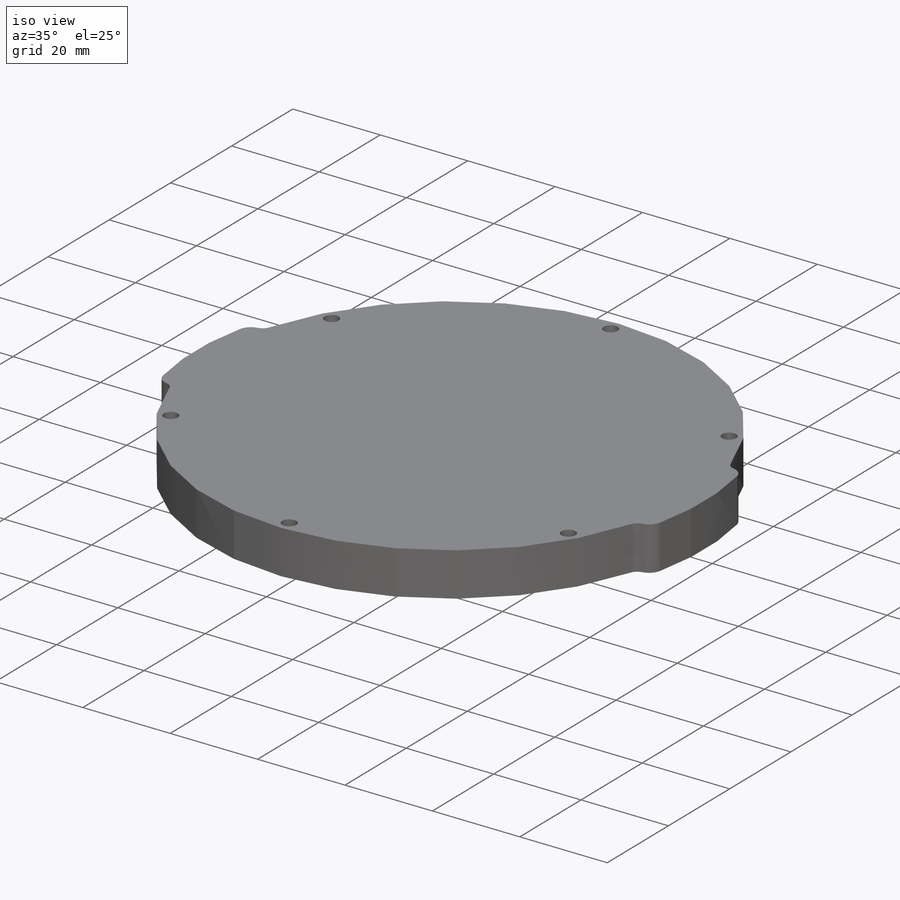
[diagram: iso view]
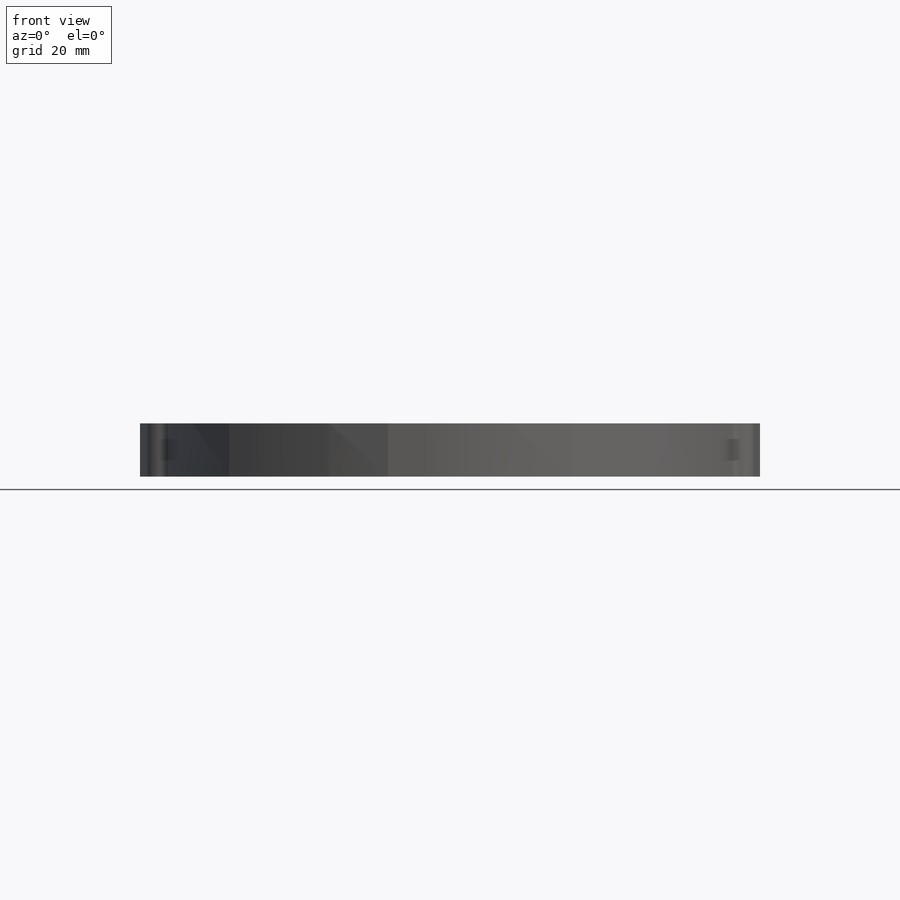
[diagram: front view]
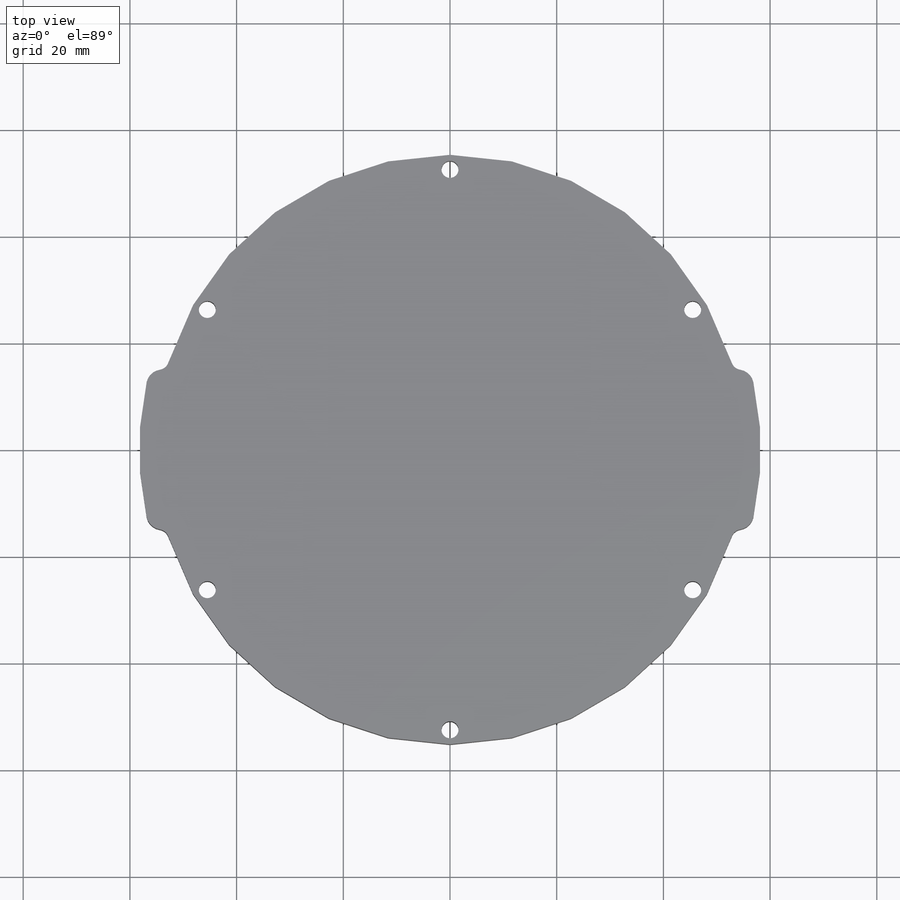
[diagram: top view]
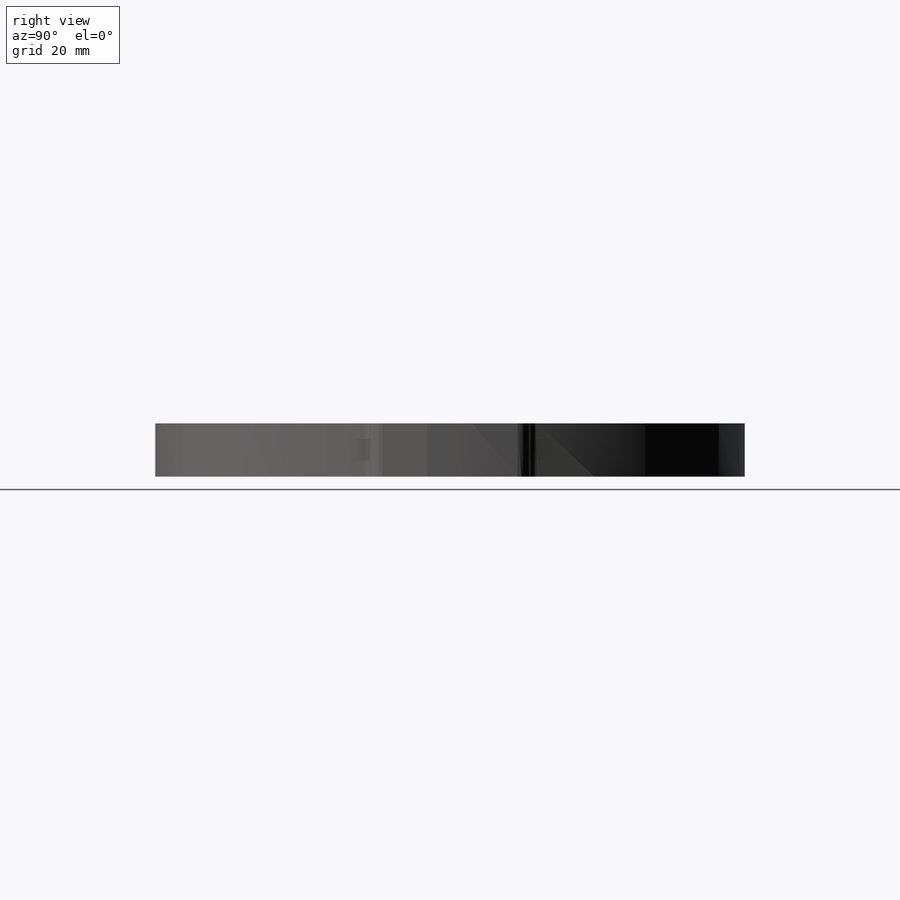
[diagram: right view]
SOLIDWORKS PART (.sldprt)
format: sldprt  version: not decoded by parser v0  size: 395,776 bytes
history: native  units: mm
features: plane x3, sketch x2, fillet x2, material x1, extrude x1, cut_extrude x1 (+10 scaffold rows collapsed)
feature tree (20):
  scaffold x10  (default folders/planes/origin — collapsed)
  material  "材质 <未指定>"
  plane  "前视"
  plane  "上视"
  plane  "右视"
  sketch  "草图1"  dims[c1.D1=15.0mm c1.D2=15.0mm c1.D3=55.25mm c1.D4=55.25mm c1.D5=60.25mm c2.D5=150.0deg c3.D5=58.25mm]
  extrude  "凸台-拉伸1"  Depth=10mm
  fillet  "圆角2"  Radius=3mm
  fillet  "圆角3"  Radius=2mm
  sketch  "草图2"  dims[c1.D1=105.05mm c1.D2=~1.29773mm c1.D3=3.2mm c2.D2=6.0]
  cut_extrude  "切除-拉伸1"  [1 undecoded]
decode coverage: 5 of 6 modeling features carry decoded parameters
note: ~ marks probable driven/reference dimensions
note: 1 parameter value undecoded
note: suppression state not decoded; provenance and decode notes live in map.json
